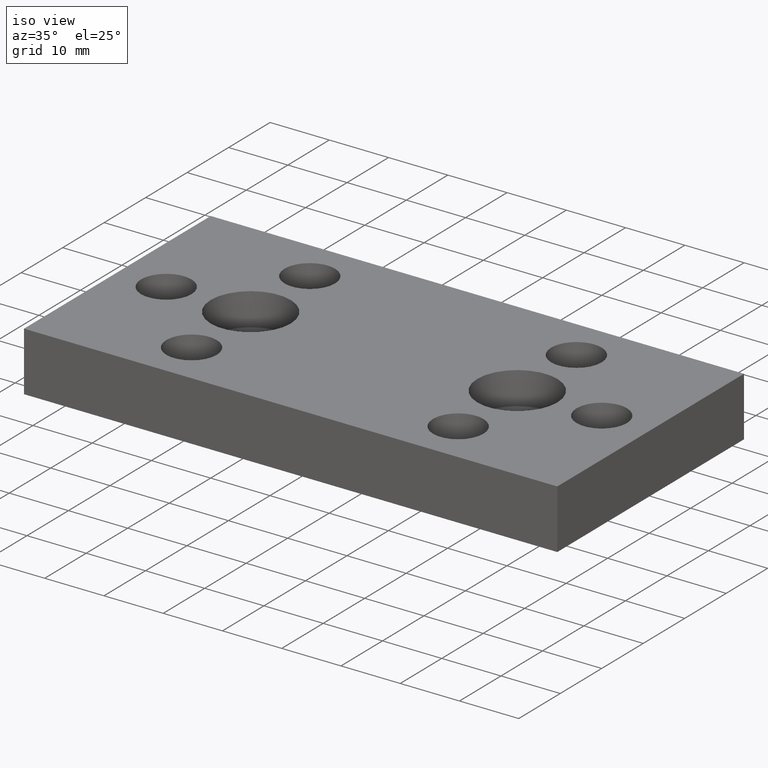
[diagram: clean part render]
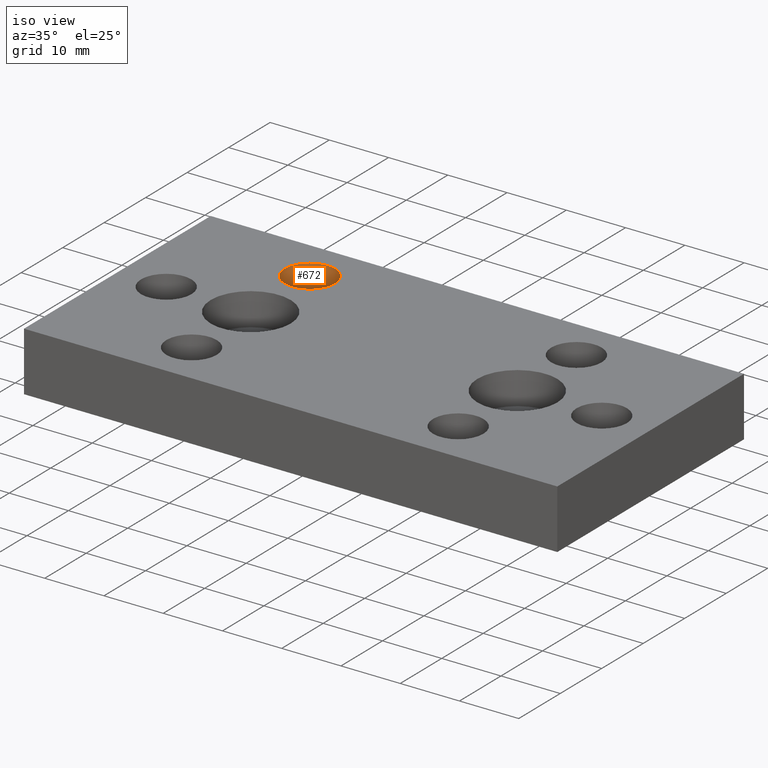
[diagram: same view with one face highlighted and labeled with its STEP entity id]
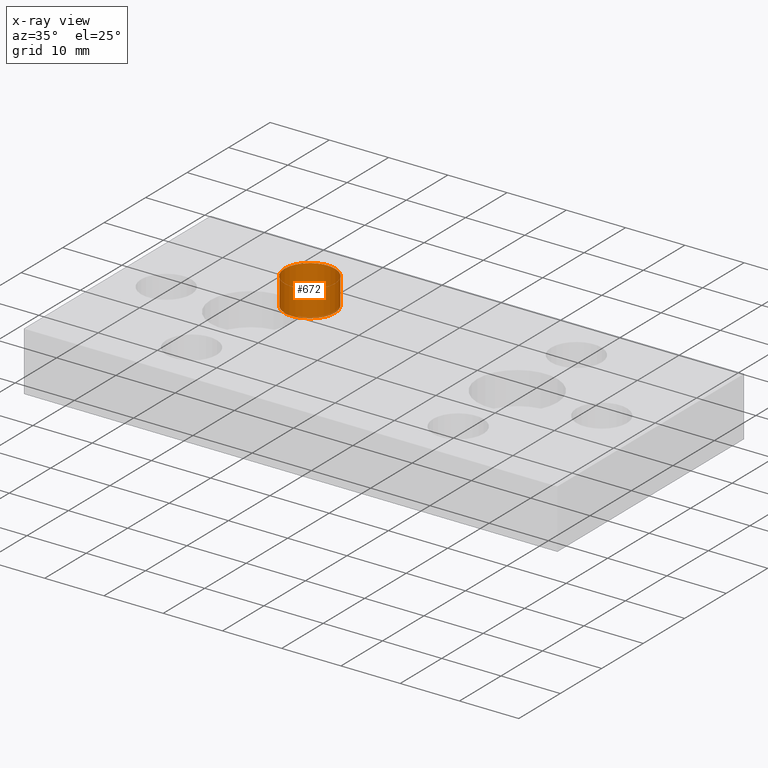
[diagram: x-ray of the same camera — body ghosted, the highlighted face saturated]
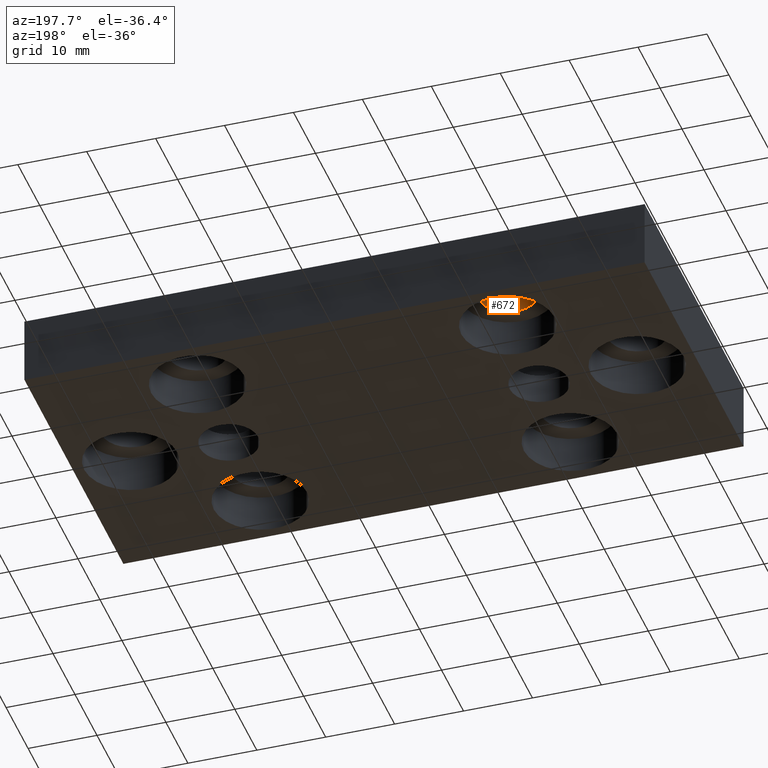
[diagram: same view with one face highlighted and labeled with its STEP entity id]
A machine part, iso view. The second image highlights one B-rep face of the part: STEP entity #672.
The next image is the same camera in x-ray: the body ghosted, the highlighted face saturated — about 2% of this face is hidden behind the body in this view.
A second angle (auxiliary view) of the same face is appended — the face is thin or edge-on in the first view.
In plain terms, the highlighted cylindrical surface (bore or boss wall) has radius 4.25 mm, axis along (0, -0, -1).
Its self-contained STEP definition (entity closure, byte-faithful):
#177=CARTESIAN_POINT('',(-26.749999999893589,-8.249999999967031,10.0));
#178=VERTEX_POINT('',#177);
#179=CARTESIAN_POINT('',(-18.249999999927240,-8.249999999967031,10.0));
#180=VERTEX_POINT('',#179);
#181=CARTESIAN_POINT('',(-22.499999999910415,-8.249999999967031,10.0));
#182=DIRECTION('',(0.0,6.123234E-017,1.0));
#183=DIRECTION('',(1.0,0.0,0.0));
#184=AXIS2_PLACEMENT_3D('',#181,#182,#183);
#185=CIRCLE('',#184,4.249999999983174);
#186=EDGE_CURVE('',#178,#180,#185,.T.);
#188=CARTESIAN_POINT('',(-22.499999999910415,-8.249999999967031,10.0));
#189=DIRECTION('',(0.0,6.123234E-017,1.0));
#190=DIRECTION('',(1.0,0.0,0.0));
#191=AXIS2_PLACEMENT_3D('',#188,#189,#190);
#192=CIRCLE('',#191,4.249999999983174);
#193=EDGE_CURVE('',#180,#178,#192,.T.);
#638=CARTESIAN_POINT('',(-22.499999999910415,-8.249999999967031,11.000016784667976));
#639=DIRECTION('',(0.0,-6.123234E-017,-1.0));
#640=DIRECTION('',(1.0,0.0,0.0));
#641=AXIS2_PLACEMENT_3D('',#638,#639,#640);
#642=CYLINDRICAL_SURFACE('',#641,4.249999999983174);
#643=CARTESIAN_POINT('',(-18.249999999927240,-8.249999999967031,5.500000000000002));
#644=VERTEX_POINT('',#643);
#645=CARTESIAN_POINT('',(-18.249999999927240,-8.249999999967031,10.0));
#646=DIRECTION('',(0.0,0.0,-1.0));
#647=VECTOR('',#646,4.499999999999998);
#648=LINE('',#645,#647);
#649=EDGE_CURVE('',#180,#644,#648,.T.);
#650=ORIENTED_EDGE('',*,*,#649,.F.);
#651=ORIENTED_EDGE('',*,*,#193,.T.);
#652=ORIENTED_EDGE('',*,*,#186,.T.);
#653=ORIENTED_EDGE('',*,*,#649,.T.);
#654=CARTESIAN_POINT('',(-26.749999999893589,-8.249999999967031,5.500000000000002));
#655=VERTEX_POINT('',#654);
#656=CARTESIAN_POINT('',(-22.499999999910415,-8.249999999967031,5.500000000000002));
#657=DIRECTION('',(0.0,-6.123234E-017,-1.0));
#658=DIRECTION('',(1.0,0.0,0.0));
#659=AXIS2_PLACEMENT_3D('',#656,#657,#658);
#660=CIRCLE('',#659,4.249999999983174);
#661=EDGE_CURVE('',#644,#655,#660,.T.);
#662=ORIENTED_EDGE('',*,*,#661,.T.);
#663=CARTESIAN_POINT('',(-22.499999999910415,-8.249999999967031,5.500000000000002));
#664=DIRECTION('',(0.0,-6.123234E-017,-1.0));
#665=DIRECTION('',(1.0,0.0,0.0));
#666=AXIS2_PLACEMENT_3D('',#663,#664,#665);
#667=CIRCLE('',#666,4.249999999983174);
#668=EDGE_CURVE('',#655,#644,#667,.T.);
#669=ORIENTED_EDGE('',*,*,#668,.T.);
#670=EDGE_LOOP('',(#650,#651,#652,#653,#662,#669));
#671=FACE_OUTER_BOUND('',#670,.T.);
#672=ADVANCED_FACE('',(#671),#642,.F.);